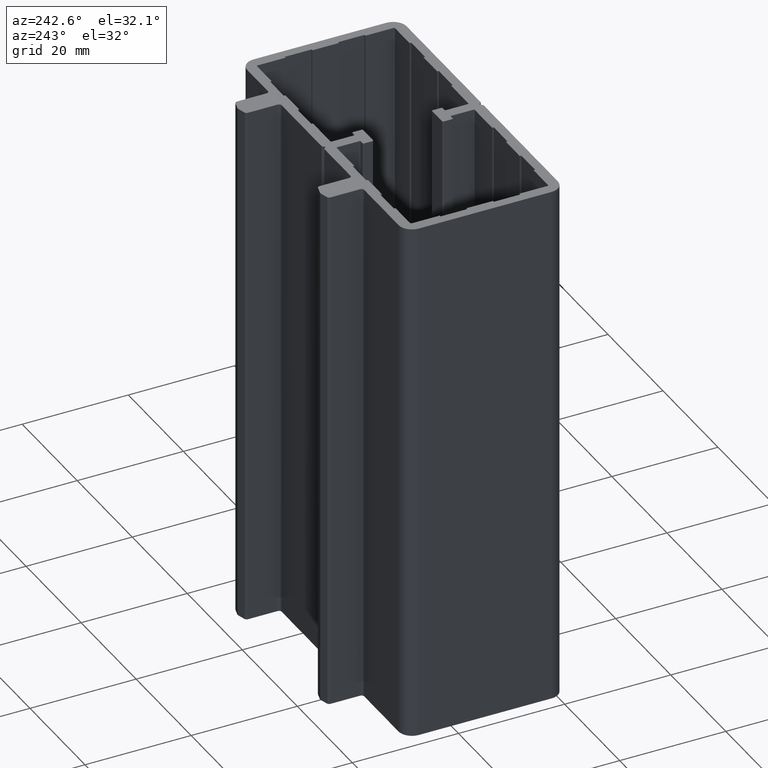
[diagram: clean part render]
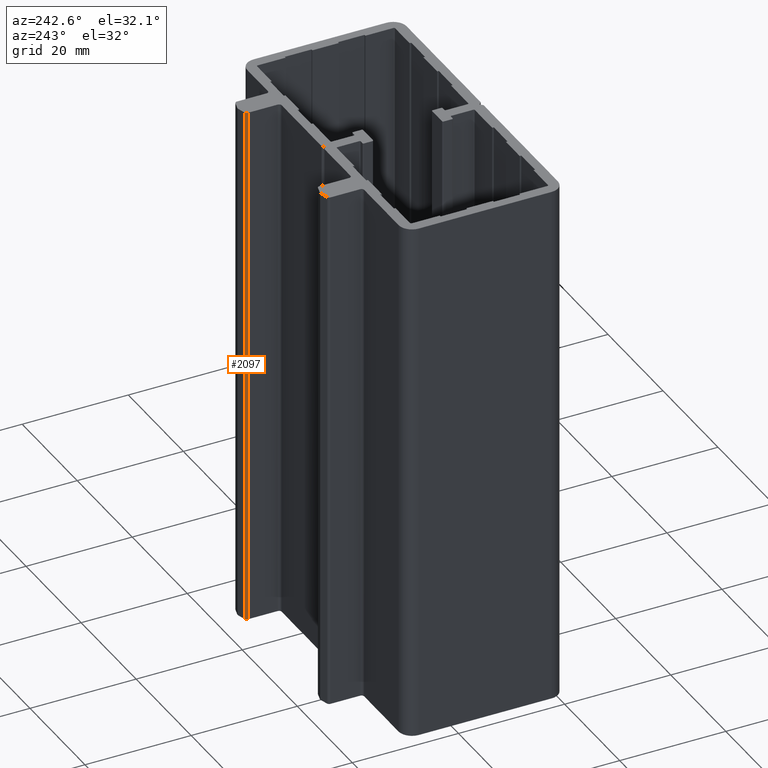
[diagram: same view with one face highlighted and labeled with its STEP entity id]
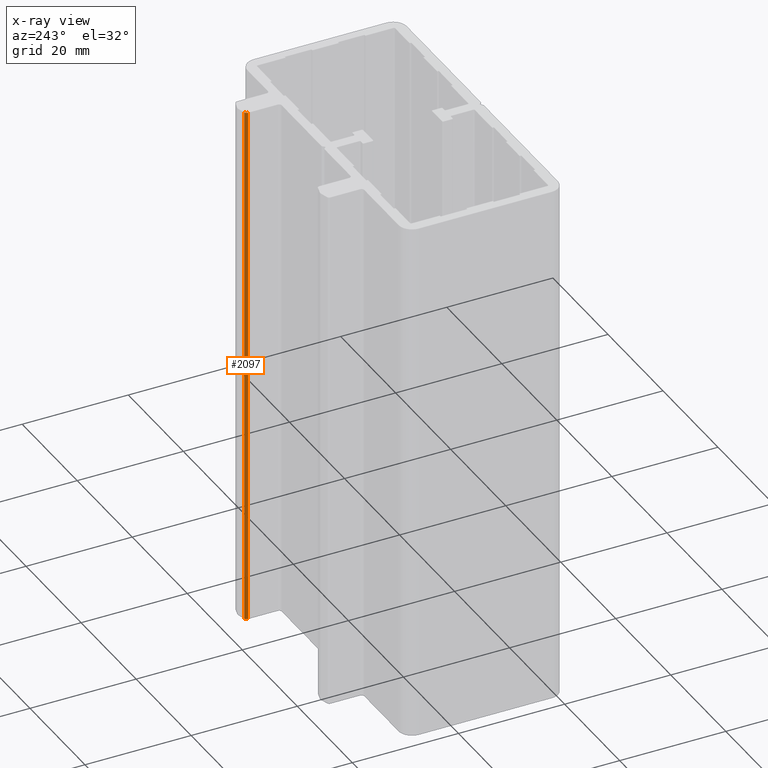
[diagram: x-ray of the same camera — body ghosted, the highlighted face saturated]
A machine part, auxiliary view. The second image highlights one B-rep face of the part: STEP entity #2097.
The next image is the same camera in x-ray: the body ghosted, the highlighted face saturated — about 0% of this face is hidden behind the body in this view.
In plain terms, the highlighted cylindrical surface (edge-blend (fillet) strip) has radius 0.5 mm, axis along (0, 0, -1).
Its self-contained STEP definition (entity closure, byte-faithful):
#18=CARTESIAN_POINT('',(45.882576297177636,36.561929172974700,100.0));
#19=VERTEX_POINT('',#18);
#26=CARTESIAN_POINT('',(45.511985819729048,36.078966259830246,100.0));
#27=VERTEX_POINT('',#26);
#28=CARTESIAN_POINT('',(46.011985819728970,36.078966259830246,100.0));
#29=DIRECTION('',(0.0,0.0,1.0));
#30=DIRECTION('',(1.0,0.0,0.0));
#31=AXIS2_PLACEMENT_3D('',#28,#29,#30);
#32=CIRCLE('',#31,0.499999999999952);
#33=EDGE_CURVE('',#19,#27,#32,.T.);
#1290=CARTESIAN_POINT('',(45.511985819729048,36.078966259830246,0.0));
#1291=VERTEX_POINT('',#1290);
#1298=CARTESIAN_POINT('',(45.882576297177636,36.561929172974700,0.0));
#1299=VERTEX_POINT('',#1298);
#1300=CARTESIAN_POINT('',(46.011985819728970,36.078966259830246,0.0));
#1301=DIRECTION('',(0.0,0.0,1.0));
#1302=DIRECTION('',(1.0,0.0,0.0));
#1303=AXIS2_PLACEMENT_3D('',#1300,#1301,#1302);
#1304=CIRCLE('',#1303,0.499999999999952);
#1305=EDGE_CURVE('',#1299,#1291,#1304,.T.);
#2070=CARTESIAN_POINT('',(45.882576297177636,36.561929172974700,100.0));
#2071=DIRECTION('',(0.0,0.0,-1.0));
#2072=VECTOR('',#2071,100.0);
#2073=LINE('',#2070,#2072);
#2074=EDGE_CURVE('',#19,#1299,#2073,.T.);
#2081=CARTESIAN_POINT('',(46.011985819728963,36.078966259830246,100.000000009999990));
#2082=DIRECTION('',(0.0,0.0,-1.0));
#2083=DIRECTION('',(0.793353340291291,-0.608761429008648,0.0));
#2084=AXIS2_PLACEMENT_3D('',#2081,#2082,#2083);
#2085=CYLINDRICAL_SURFACE('',#2084,0.499999999999952);
#2086=ORIENTED_EDGE('',*,*,#1305,.T.);
#2087=CARTESIAN_POINT('',(45.511985819729048,36.078966259830246,100.0));
#2088=DIRECTION('',(0.0,0.0,-1.0));
#2089=VECTOR('',#2088,100.0);
#2090=LINE('',#2087,#2089);
#2091=EDGE_CURVE('',#27,#1291,#2090,.T.);
#2092=ORIENTED_EDGE('',*,*,#2091,.F.);
#2093=ORIENTED_EDGE('',*,*,#33,.F.);
#2094=ORIENTED_EDGE('',*,*,#2074,.T.);
#2095=EDGE_LOOP('',(#2086,#2092,#2093,#2094));
#2096=FACE_OUTER_BOUND('',#2095,.T.);
#2097=ADVANCED_FACE('',(#2096),#2085,.T.);